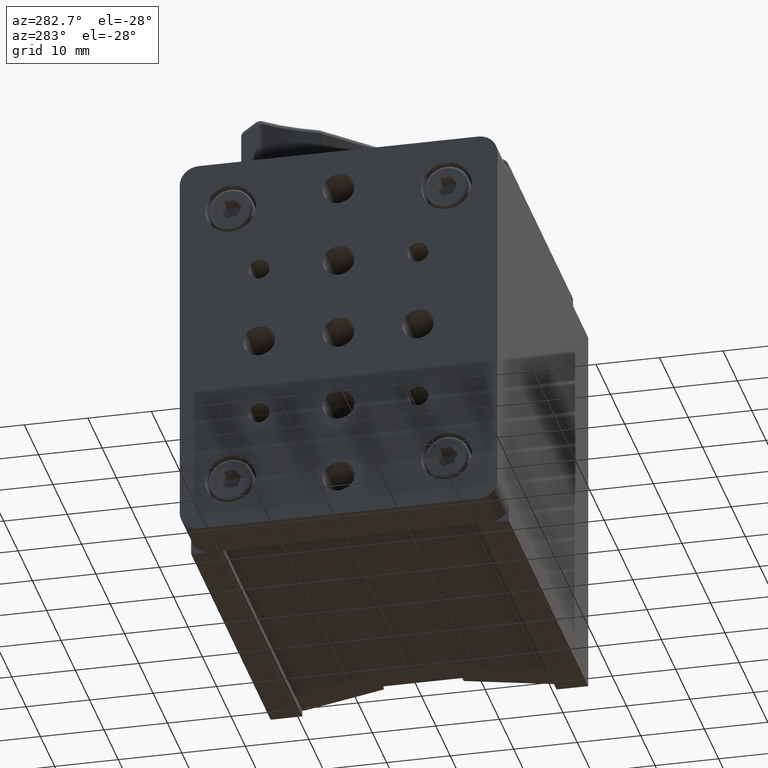
[diagram: clean part render]
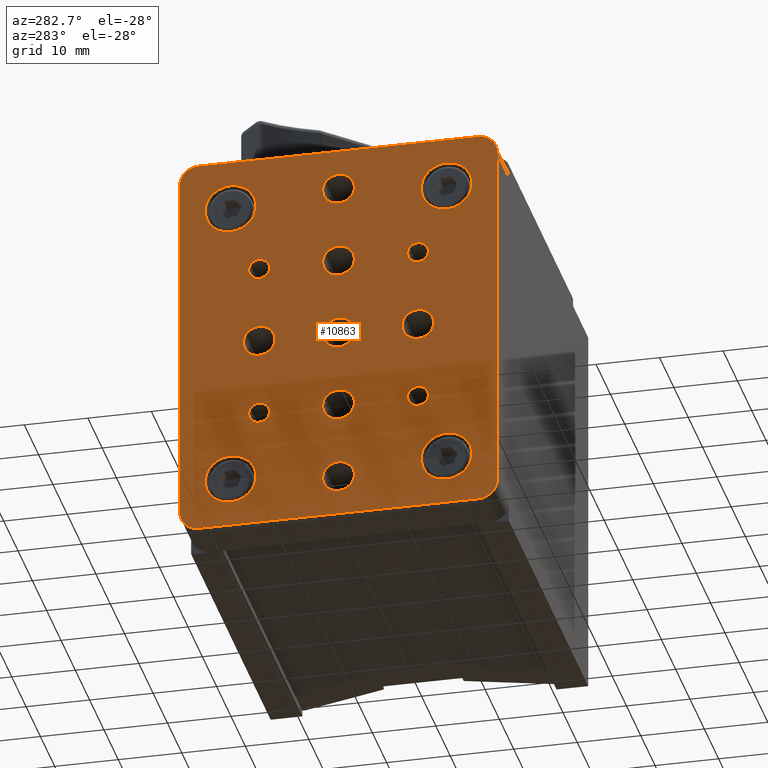
[diagram: same view with one face highlighted and labeled with its STEP entity id]
A machine part, auxiliary view. The second image highlights one B-rep face of the part: STEP entity #10863.
In plain terms, the highlighted planar face has unit normal (-1, 0, 0).
Its self-contained STEP definition (entity closure, byte-faithful):
#8 = CARTESIAN_POINT ( 'NONE',  ( -8.000000000000000000, 0.0000000000000000000, -12.50000000000000000 ) ) ;
#89 = EDGE_LOOP ( 'NONE', ( #12372, #2196 ) ) ;
#199 = DIRECTION ( 'NONE',  ( 0.0000000000000000000, 0.0000000000000000000, 1.000000000000000000 ) ) ;
#210 = DIRECTION ( 'NONE',  ( 0.0000000000000000000, 0.0000000000000000000, 1.000000000000000000 ) ) ;
#228 = EDGE_CURVE ( 'NONE', #4768, #12541, #1212, .T. ) ;
#234 = VERTEX_POINT ( 'NONE', #10972 ) ;
#253 = CIRCLE ( 'NONE', #7229, 2.499999999999998700 ) ;
#339 = EDGE_CURVE ( 'NONE', #9817, #4795, #11154, .T. ) ;
#350 = CARTESIAN_POINT ( 'NONE',  ( -8.000000000000000000, 0.0000000000000000000, 0.0000000000000000000 ) ) ;
#400 = ORIENTED_EDGE ( 'NONE', *, *, #9247, .F. ) ;
#402 = ORIENTED_EDGE ( 'NONE', *, *, #1150, .F. ) ;
#461 = DIRECTION ( 'NONE',  ( 0.0000000000000000000, 0.0000000000000000000, 1.000000000000000000 ) ) ;
#478 = CARTESIAN_POINT ( 'NONE',  ( -8.000000000000000000, 0.0000000000000000000, 12.50000000000000000 ) ) ;
#484 = CARTESIAN_POINT ( 'NONE',  ( -8.000000000000000000, 12.50000000000000000, 2.499999999999998700 ) ) ;
#533 = DIRECTION ( 'NONE',  ( -1.000000000000000000, 0.0000000000000000000, 0.0000000000000000000 ) ) ;
#683 = CIRCLE ( 'NONE', #6838, 2.499999999999998700 ) ;
#692 = DIRECTION ( 'NONE',  ( -1.000000000000000000, 0.0000000000000000000, 0.0000000000000000000 ) ) ;
#753 = VERTEX_POINT ( 'NONE', #5167 ) ;
#789 = EDGE_LOOP ( 'NONE', ( #400, #8560 ) ) ;
#797 = EDGE_CURVE ( 'NONE', #6297, #12050, #1356, .T. ) ;
#841 = CARTESIAN_POINT ( 'NONE',  ( -8.000000000000000000, 0.0000000000000000000, 2.499999999999998700 ) ) ;
#875 = CARTESIAN_POINT ( 'NONE',  ( -8.000000000000000000, -25.00000000000000000, 28.50000000000000400 ) ) ;
#932 = AXIS2_PLACEMENT_3D ( 'NONE', #3110, #10871, #6063 ) ;
#956 = DIRECTION ( 'NONE',  ( 0.0000000000000000000, 0.0000000000000000000, 1.000000000000000000 ) ) ;
#998 = DIRECTION ( 'NONE',  ( 0.0000000000000000000, 0.0000000000000000000, 1.000000000000000000 ) ) ;
#1001 = ORIENTED_EDGE ( 'NONE', *, *, #3891, .T. ) ;
#1006 = FACE_OUTER_BOUND ( 'NONE', #3777, .T. ) ;
#1083 = DIRECTION ( 'NONE',  ( -1.000000000000000000, 0.0000000000000000000, 0.0000000000000000000 ) ) ;
#1150 = EDGE_CURVE ( 'NONE', #3204, #1720, #11593, .T. ) ;
#1154 = DIRECTION ( 'NONE',  ( -1.000000000000000000, 0.0000000000000000000, 0.0000000000000000000 ) ) ;
#1157 = FACE_BOUND ( 'NONE', #1623, .T. ) ;
#1201 = CARTESIAN_POINT ( 'NONE',  ( -8.000000000000000000, 0.0000000000000000000, 15.00000000000000000 ) ) ;
#1212 = CIRCLE ( 'NONE', #3647, 1.649999999999998600 ) ;
#1237 = ORIENTED_EDGE ( 'NONE', *, *, #12192, .F. ) ;
#1282 = DIRECTION ( 'NONE',  ( 0.0000000000000000000, 0.0000000000000000000, 1.000000000000000000 ) ) ;
#1308 = ORIENTED_EDGE ( 'NONE', *, *, #228, .F. ) ;
#1311 = FACE_BOUND ( 'NONE', #12102, .T. ) ;
#1328 = AXIS2_PLACEMENT_3D ( 'NONE', #9312, #11176, #6325 ) ;
#1347 = DIRECTION ( 'NONE',  ( 0.0000000000000000000, 0.0000000000000000000, -1.000000000000000000 ) ) ;
#1356 = CIRCLE ( 'NONE', #2455, 2.999999999999999100 ) ;
#1415 = CARTESIAN_POINT ( 'NONE',  ( -8.000000000000000000, 12.50000000000000000, 14.14999999999999900 ) ) ;
#1531 = EDGE_CURVE ( 'NONE', #3597, #6297, #5026, .T. ) ;
#1555 = ORIENTED_EDGE ( 'NONE', *, *, #4991, .T. ) ;
#1623 = EDGE_LOOP ( 'NONE', ( #6335, #6506 ) ) ;
#1720 = VERTEX_POINT ( 'NONE', #11964 ) ;
#1723 = DIRECTION ( 'NONE',  ( 0.0000000000000000000, 0.0000000000000000000, 1.000000000000000000 ) ) ;
#1752 = CIRCLE ( 'NONE', #1830, 3.999999999999993300 ) ;
#1771 = FACE_BOUND ( 'NONE', #7662, .T. ) ;
#1787 = CARTESIAN_POINT ( 'NONE',  ( -8.000000000000000000, -12.50000000000000000, 2.499999999999998700 ) ) ;
#1809 = CARTESIAN_POINT ( 'NONE',  ( -8.000000000000000000, 17.00000000000000000, 23.50000000000000000 ) ) ;
#1830 = AXIS2_PLACEMENT_3D ( 'NONE', #11372, #6426, #10308 ) ;
#1836 = CARTESIAN_POINT ( 'NONE',  ( -8.000000000000000000, -12.50000000000000000, 0.0000000000000000000 ) ) ;
#1880 = CARTESIAN_POINT ( 'NONE',  ( -8.000000000000000000, 12.50000000000000000, -12.50000000000000000 ) ) ;
#1936 = CIRCLE ( 'NONE', #4473, 2.499999999999998700 ) ;
#1987 = DIRECTION ( 'NONE',  ( 0.0000000000000000000, 0.0000000000000000000, 1.000000000000000000 ) ) ;
#2049 = VERTEX_POINT ( 'NONE', #9909 ) ;
#2074 = EDGE_LOOP ( 'NONE', ( #5622, #6658 ) ) ;
#2076 = EDGE_CURVE ( 'NONE', #2049, #6016, #10369, .T. ) ;
#2183 = DIRECTION ( 'NONE',  ( 0.0000000000000000000, 0.0000000000000000000, 1.000000000000000000 ) ) ;
#2196 = ORIENTED_EDGE ( 'NONE', *, *, #3035, .F. ) ;
#2273 = CARTESIAN_POINT ( 'NONE',  ( -8.000000000000000000, 22.00000000000000400, 31.50000000000000700 ) ) ;
#2348 = VERTEX_POINT ( 'NONE', #12265 ) ;
#2455 = AXIS2_PLACEMENT_3D ( 'NONE', #12220, #533, #11506 ) ;
#2504 = EDGE_LOOP ( 'NONE', ( #9041, #11951 ) ) ;
#2532 = ORIENTED_EDGE ( 'NONE', *, *, #8050, .F. ) ;
#2541 = AXIS2_PLACEMENT_3D ( 'NONE', #11042, #10063, #2183 ) ;
#2549 = EDGE_CURVE ( 'NONE', #753, #3606, #8664, .T. ) ;
#2629 = CARTESIAN_POINT ( 'NONE',  ( -8.000000000000000000, 25.00000000000000000, -28.50000000000000700 ) ) ;
#2644 = EDGE_CURVE ( 'NONE', #12541, #4768, #5939, .T. ) ;
#2667 = DIRECTION ( 'NONE',  ( 0.0000000000000000000, 0.0000000000000000000, 1.000000000000000000 ) ) ;
#2727 = EDGE_CURVE ( 'NONE', #12274, #6460, #9126, .T. ) ;
#2787 = CARTESIAN_POINT ( 'NONE',  ( -8.000000000000000000, -22.00000000000000000, -31.50000000000000700 ) ) ;
#2841 = VERTEX_POINT ( 'NONE', #4540 ) ;
#2856 = DIRECTION ( 'NONE',  ( 0.0000000000000000000, 0.0000000000000000000, 1.000000000000000000 ) ) ;
#2865 = FACE_BOUND ( 'NONE', #4924, .T. ) ;
#2907 = EDGE_LOOP ( 'NONE', ( #7754, #10033 ) ) ;
#2920 = CARTESIAN_POINT ( 'NONE',  ( -8.000000000000000000, -12.50000000000000000, -12.50000000000000000 ) ) ;
#2950 = VERTEX_POINT ( 'NONE', #1787 ) ;
#2966 = CIRCLE ( 'NONE', #6504, 2.499999999999998700 ) ;
#2975 = DIRECTION ( 'NONE',  ( 0.0000000000000000000, 0.0000000000000000000, 1.000000000000000000 ) ) ;
#2997 = CIRCLE ( 'NONE', #8630, 1.649999999999998600 ) ;
#3035 = EDGE_CURVE ( 'NONE', #9819, #11177, #1936, .T. ) ;
#3110 = CARTESIAN_POINT ( 'NONE',  ( -8.000000000000000000, -12.50000000000000000, 12.50000000000000000 ) ) ;
#3128 = EDGE_CURVE ( 'NONE', #5265, #2348, #5448, .T. ) ;
#3133 = ORIENTED_EDGE ( 'NONE', *, *, #10197, .F. ) ;
#3153 = CARTESIAN_POINT ( 'NONE',  ( -8.000000000000000000, -25.00000000000000000, -31.50000000000000700 ) ) ;
#3156 = CIRCLE ( 'NONE', #10091, 3.000000000000002700 ) ;
#3204 = VERTEX_POINT ( 'NONE', #3739 ) ;
#3247 = EDGE_CURVE ( 'NONE', #3606, #7368, #4219, .T. ) ;
#3313 = FACE_BOUND ( 'NONE', #5417, .T. ) ;
#3343 = CARTESIAN_POINT ( 'NONE',  ( -8.000000000000000000, 12.50000000000000000, 0.0000000000000000000 ) ) ;
#3384 = DIRECTION ( 'NONE',  ( -1.000000000000000000, 0.0000000000000000000, 0.0000000000000000000 ) ) ;
#3459 = CARTESIAN_POINT ( 'NONE',  ( -8.000000000000000000, 0.0000000000000000000, -10.00000000000000200 ) ) ;
#3497 = DIRECTION ( 'NONE',  ( -1.000000000000000000, 0.0000000000000000000, 0.0000000000000000000 ) ) ;
#3504 = CIRCLE ( 'NONE', #7616, 2.499999999999998700 ) ;
#3588 = CIRCLE ( 'NONE', #8742, 3.999999999999993300 ) ;
#3590 = EDGE_CURVE ( 'NONE', #4795, #9817, #683, .T. ) ;
#3597 = VERTEX_POINT ( 'NONE', #9492 ) ;
#3606 = VERTEX_POINT ( 'NONE', #875 ) ;
#3614 = CARTESIAN_POINT ( 'NONE',  ( -8.000000000000000000, 22.00000000000000400, -31.50000000000000700 ) ) ;
#3622 = FACE_BOUND ( 'NONE', #10423, .T. ) ;
#3647 = AXIS2_PLACEMENT_3D ( 'NONE', #4105, #8005, #210 ) ;
#3665 = CARTESIAN_POINT ( 'NONE',  ( -8.000000000000000000, 17.00000000000000000, 19.50000000000000700 ) ) ;
#3673 = DIRECTION ( 'NONE',  ( 0.0000000000000000000, 0.0000000000000000000, 1.000000000000000000 ) ) ;
#3739 = CARTESIAN_POINT ( 'NONE',  ( -8.000000000000000000, -17.00000000000000000, 27.49999999999999300 ) ) ;
#3777 = EDGE_LOOP ( 'NONE', ( #1555, #11710, #4445, #7255, #9081, #1001, #4168, #8403 ) ) ;
#3779 = AXIS2_PLACEMENT_3D ( 'NONE', #7882, #3906, #2975 ) ;
#3829 = CARTESIAN_POINT ( 'NONE',  ( -8.000000000000000000, -22.00000000000000000, 31.50000000000000700 ) ) ;
#3864 = DIRECTION ( 'NONE',  ( -1.000000000000000000, 0.0000000000000000000, 0.0000000000000000000 ) ) ;
#3890 = CARTESIAN_POINT ( 'NONE',  ( -8.000000000000000000, -22.00000000000000400, -28.50000000000000700 ) ) ;
#3891 = EDGE_CURVE ( 'NONE', #7144, #3597, #3156, .T. ) ;
#3892 = DIRECTION ( 'NONE',  ( 0.0000000000000000000, 0.0000000000000000000, 1.000000000000000000 ) ) ;
#3906 = DIRECTION ( 'NONE',  ( -1.000000000000000000, 0.0000000000000000000, 0.0000000000000000000 ) ) ;
#3953 = DIRECTION ( 'NONE',  ( 0.0000000000000000000, 0.0000000000000000000, 1.000000000000000000 ) ) ;
#4025 = ORIENTED_EDGE ( 'NONE', *, *, #9546, .F. ) ;
#4043 = DIRECTION ( 'NONE',  ( 0.0000000000000000000, 0.0000000000000000000, 1.000000000000000000 ) ) ;
#4059 = EDGE_CURVE ( 'NONE', #10711, #234, #1752, .T. ) ;
#4069 = AXIS2_PLACEMENT_3D ( 'NONE', #8061, #10909, #11887 ) ;
#4105 = CARTESIAN_POINT ( 'NONE',  ( -8.000000000000000000, -12.50000000000000000, 12.50000000000000000 ) ) ;
#4155 = CARTESIAN_POINT ( 'NONE',  ( -8.000000000000000000, 0.0000000000000000000, 12.50000000000000000 ) ) ;
#4168 = ORIENTED_EDGE ( 'NONE', *, *, #1531, .T. ) ;
#4179 = VERTEX_POINT ( 'NONE', #6120 ) ;
#4180 = ORIENTED_EDGE ( 'NONE', *, *, #2727, .F. ) ;
#4197 = DIRECTION ( 'NONE',  ( 0.0000000000000000000, 0.0000000000000000000, 1.000000000000000000 ) ) ;
#4219 = CIRCLE ( 'NONE', #6447, 2.999999999999999100 ) ;
#4357 = EDGE_CURVE ( 'NONE', #2841, #7676, #2997, .T. ) ;
#4378 = DIRECTION ( 'NONE',  ( -1.000000000000000000, 0.0000000000000000000, 0.0000000000000000000 ) ) ;
#4445 = ORIENTED_EDGE ( 'NONE', *, *, #2549, .T. ) ;
#4473 = AXIS2_PLACEMENT_3D ( 'NONE', #8880, #11776, #5031 ) ;
#4540 = CARTESIAN_POINT ( 'NONE',  ( -8.000000000000000000, 12.50000000000000000, -10.85000000000000100 ) ) ;
#4572 = CIRCLE ( 'NONE', #3779, 3.999999999999993300 ) ;
#4627 = CARTESIAN_POINT ( 'NONE',  ( -8.000000000000000000, 22.00000000000000400, 28.50000000000000400 ) ) ;
#4768 = VERTEX_POINT ( 'NONE', #6183 ) ;
#4795 = VERTEX_POINT ( 'NONE', #6316 ) ;
#4867 = DIRECTION ( 'NONE',  ( -1.000000000000000000, 0.0000000000000000000, 0.0000000000000000000 ) ) ;
#4877 = AXIS2_PLACEMENT_3D ( 'NONE', #6245, #6290, #461 ) ;
#4890 = CARTESIAN_POINT ( 'NONE',  ( -8.000000000000000000, 0.0000000000000000000, 25.00000000000000000 ) ) ;
#4924 = EDGE_LOOP ( 'NONE', ( #5887, #9265 ) ) ;
#4981 = DIRECTION ( 'NONE',  ( -1.000000000000000000, 0.0000000000000000000, 0.0000000000000000000 ) ) ;
#4991 = EDGE_CURVE ( 'NONE', #12050, #11673, #12262, .T. ) ;
#5003 = VECTOR ( 'NONE', #998, 1000.000000000000000 ) ;
#5026 = LINE ( 'NONE', #5216, #7940 ) ;
#5031 = DIRECTION ( 'NONE',  ( 0.0000000000000000000, 0.0000000000000000000, 1.000000000000000000 ) ) ;
#5050 = CIRCLE ( 'NONE', #8511, 1.649999999999998600 ) ;
#5051 = CARTESIAN_POINT ( 'NONE',  ( -8.000000000000000000, 0.0000000000000000000, -22.50000000000000700 ) ) ;
#5052 = CARTESIAN_POINT ( 'NONE',  ( -8.000000000000000000, 17.00000000000000000, -23.50000000000000000 ) ) ;
#5071 = ORIENTED_EDGE ( 'NONE', *, *, #3128, .F. ) ;
#5156 = ORIENTED_EDGE ( 'NONE', *, *, #8821, .F. ) ;
#5158 = CIRCLE ( 'NONE', #9188, 2.499999999999998700 ) ;
#5167 = CARTESIAN_POINT ( 'NONE',  ( -8.000000000000000000, -25.00000000000000000, -28.50000000000000700 ) ) ;
#5216 = CARTESIAN_POINT ( 'NONE',  ( -8.000000000000000000, 25.00000000000000000, -31.50000000000000700 ) ) ;
#5240 = DIRECTION ( 'NONE',  ( 0.0000000000000000000, 0.0000000000000000000, 1.000000000000000000 ) ) ;
#5265 = VERTEX_POINT ( 'NONE', #11286 ) ;
#5302 = FACE_BOUND ( 'NONE', #2074, .T. ) ;
#5314 = EDGE_CURVE ( 'NONE', #7368, #7144, #12408, .T. ) ;
#5321 = DIRECTION ( 'NONE',  ( -1.000000000000000000, 0.0000000000000000000, 0.0000000000000000000 ) ) ;
#5359 = DIRECTION ( 'NONE',  ( -1.000000000000000000, 0.0000000000000000000, 0.0000000000000000000 ) ) ;
#5403 = CARTESIAN_POINT ( 'NONE',  ( -8.000000000000000000, -12.50000000000000000, -12.50000000000000000 ) ) ;
#5417 = EDGE_LOOP ( 'NONE', ( #2532, #11474 ) ) ;
#5426 = VERTEX_POINT ( 'NONE', #8771 ) ;
#5443 = FACE_BOUND ( 'NONE', #2907, .T. ) ;
#5448 = CIRCLE ( 'NONE', #2541, 3.999999999999993300 ) ;
#5513 = ORIENTED_EDGE ( 'NONE', *, *, #7976, .F. ) ;
#5526 = EDGE_CURVE ( 'NONE', #12447, #10593, #2966, .T. ) ;
#5622 = ORIENTED_EDGE ( 'NONE', *, *, #339, .F. ) ;
#5638 = CARTESIAN_POINT ( 'NONE',  ( -8.000000000000000000, -17.00000000000000000, -19.50000000000000700 ) ) ;
#5714 = EDGE_CURVE ( 'NONE', #10593, #12447, #10291, .T. ) ;
#5775 = DIRECTION ( 'NONE',  ( -1.000000000000000000, 0.0000000000000000000, 0.0000000000000000000 ) ) ;
#5822 = CIRCLE ( 'NONE', #8443, 2.499999999999998700 ) ;
#5849 = DIRECTION ( 'NONE',  ( -1.000000000000000000, 0.0000000000000000000, 0.0000000000000000000 ) ) ;
#5865 = DIRECTION ( 'NONE',  ( 0.0000000000000000000, 0.0000000000000000000, 1.000000000000000000 ) ) ;
#5887 = ORIENTED_EDGE ( 'NONE', *, *, #4357, .F. ) ;
#5898 = DIRECTION ( 'NONE',  ( 0.0000000000000000000, 0.0000000000000000000, 1.000000000000000000 ) ) ;
#5939 = CIRCLE ( 'NONE', #932, 1.649999999999998600 ) ;
#5970 = AXIS2_PLACEMENT_3D ( 'NONE', #7923, #1154, #1987 ) ;
#6016 = VERTEX_POINT ( 'NONE', #6846 ) ;
#6029 = ORIENTED_EDGE ( 'NONE', *, *, #2644, .F. ) ;
#6052 = EDGE_CURVE ( 'NONE', #11673, #753, #9050, .T. ) ;
#6063 = DIRECTION ( 'NONE',  ( 0.0000000000000000000, 0.0000000000000000000, 1.000000000000000000 ) ) ;
#6078 = DIRECTION ( 'NONE',  ( -1.000000000000000000, 0.0000000000000000000, 0.0000000000000000000 ) ) ;
#6120 = CARTESIAN_POINT ( 'NONE',  ( -8.000000000000000000, -12.50000000000000000, -14.14999999999999900 ) ) ;
#6125 = CIRCLE ( 'NONE', #6232, 3.999999999999993300 ) ;
#6183 = CARTESIAN_POINT ( 'NONE',  ( -8.000000000000000000, -12.50000000000000000, 14.14999999999999900 ) ) ;
#6197 = AXIS2_PLACEMENT_3D ( 'NONE', #478, #4378, #5240 ) ;
#6220 = FACE_BOUND ( 'NONE', #89, .T. ) ;
#6232 = AXIS2_PLACEMENT_3D ( 'NONE', #1809, #9629, #10737 ) ;
#6245 = CARTESIAN_POINT ( 'NONE',  ( -8.000000000000000000, 0.0000000000000000000, -25.00000000000000400 ) ) ;
#6288 = CARTESIAN_POINT ( 'NONE',  ( -8.000000000000000000, 3.061616997868380700E-016, 10.00000000000000200 ) ) ;
#6290 = DIRECTION ( 'NONE',  ( -1.000000000000000000, 0.0000000000000000000, 0.0000000000000000000 ) ) ;
#6297 = VERTEX_POINT ( 'NONE', #2629 ) ;
#6316 = CARTESIAN_POINT ( 'NONE',  ( -8.000000000000000000, 3.061616997868379200E-016, -27.50000000000000400 ) ) ;
#6325 = DIRECTION ( 'NONE',  ( 0.0000000000000000000, 0.0000000000000000000, 1.000000000000000000 ) ) ;
#6335 = ORIENTED_EDGE ( 'NONE', *, *, #9481, .F. ) ;
#6426 = DIRECTION ( 'NONE',  ( -1.000000000000000000, 0.0000000000000000000, 0.0000000000000000000 ) ) ;
#6447 = AXIS2_PLACEMENT_3D ( 'NONE', #6703, #10617, #7709 ) ;
#6460 = VERTEX_POINT ( 'NONE', #6288 ) ;
#6504 = AXIS2_PLACEMENT_3D ( 'NONE', #8372, #3497, #2667 ) ;
#6506 = ORIENTED_EDGE ( 'NONE', *, *, #10942, .F. ) ;
#6571 = CIRCLE ( 'NONE', #9662, 2.499999999999998700 ) ;
#6604 = CARTESIAN_POINT ( 'NONE',  ( -8.000000000000000000, -17.00000000000000000, 23.50000000000000000 ) ) ;
#6651 = CARTESIAN_POINT ( 'NONE',  ( -8.000000000000000000, 25.00000000000000000, 31.50000000000000700 ) ) ;
#6658 = ORIENTED_EDGE ( 'NONE', *, *, #3590, .F. ) ;
#6682 = FACE_BOUND ( 'NONE', #8280, .T. ) ;
#6703 = CARTESIAN_POINT ( 'NONE',  ( -8.000000000000000000, -22.00000000000000000, 28.50000000000000700 ) ) ;
#6775 = CARTESIAN_POINT ( 'NONE',  ( -8.000000000000000000, 3.061616997868382200E-016, -2.499999999999999100 ) ) ;
#6781 = DIRECTION ( 'NONE',  ( -1.000000000000000000, 0.0000000000000000000, 0.0000000000000000000 ) ) ;
#6793 = AXIS2_PLACEMENT_3D ( 'NONE', #5403, #5359, #12174 ) ;
#6797 = AXIS2_PLACEMENT_3D ( 'NONE', #2920, #9733, #956 ) ;
#6838 = AXIS2_PLACEMENT_3D ( 'NONE', #12490, #10683, #10767 ) ;
#6846 = CARTESIAN_POINT ( 'NONE',  ( -8.000000000000000000, 0.0000000000000000000, 27.50000000000000000 ) ) ;
#7068 = VERTEX_POINT ( 'NONE', #11083 ) ;
#7102 = AXIS2_PLACEMENT_3D ( 'NONE', #1880, #4867, #9779 ) ;
#7144 = VERTEX_POINT ( 'NONE', #2273 ) ;
#7170 = CIRCLE ( 'NONE', #7881, 3.999999999999993300 ) ;
#7188 = EDGE_LOOP ( 'NONE', ( #402, #4025 ) ) ;
#7211 = CARTESIAN_POINT ( 'NONE',  ( -8.000000000000000000, -12.50000000000000000, -10.85000000000000100 ) ) ;
#7229 = AXIS2_PLACEMENT_3D ( 'NONE', #1836, #7781, #5865 ) ;
#7230 = CARTESIAN_POINT ( 'NONE',  ( -8.000000000000000000, 12.50000000000000000, -14.14999999999999900 ) ) ;
#7231 = ORIENTED_EDGE ( 'NONE', *, *, #11924, .F. ) ;
#7255 = ORIENTED_EDGE ( 'NONE', *, *, #3247, .T. ) ;
#7271 = CIRCLE ( 'NONE', #6793, 1.649999999999998600 ) ;
#7296 = FACE_BOUND ( 'NONE', #11219, .T. ) ;
#7368 = VERTEX_POINT ( 'NONE', #3829 ) ;
#7616 = AXIS2_PLACEMENT_3D ( 'NONE', #350, #5321, #11247 ) ;
#7662 = EDGE_LOOP ( 'NONE', ( #1237, #5071 ) ) ;
#7676 = VERTEX_POINT ( 'NONE', #7230 ) ;
#7709 = DIRECTION ( 'NONE',  ( 0.0000000000000000000, 0.0000000000000000000, 1.000000000000000000 ) ) ;
#7754 = ORIENTED_EDGE ( 'NONE', *, *, #5714, .F. ) ;
#7763 = DIRECTION ( 'NONE',  ( -1.000000000000000000, 0.0000000000000000000, 0.0000000000000000000 ) ) ;
#7781 = DIRECTION ( 'NONE',  ( -1.000000000000000000, 0.0000000000000000000, 0.0000000000000000000 ) ) ;
#7804 = DIRECTION ( 'NONE',  ( 0.0000000000000000000, -1.000000000000000000, 0.0000000000000000000 ) ) ;
#7842 = CARTESIAN_POINT ( 'NONE',  ( -8.000000000000000000, 12.50000000000000000, 12.50000000000000000 ) ) ;
#7855 = EDGE_CURVE ( 'NONE', #11939, #7068, #5050, .T. ) ;
#7881 = AXIS2_PLACEMENT_3D ( 'NONE', #6604, #3864, #2856 ) ;
#7882 = CARTESIAN_POINT ( 'NONE',  ( -8.000000000000000000, -17.00000000000000000, -23.50000000000000000 ) ) ;
#7923 = CARTESIAN_POINT ( 'NONE',  ( -8.000000000000000000, -17.00000000000000000, 23.50000000000000000 ) ) ;
#7940 = VECTOR ( 'NONE', #1347, 1000.000000000000000 ) ;
#7976 = EDGE_CURVE ( 'NONE', #6460, #12274, #5822, .T. ) ;
#8005 = DIRECTION ( 'NONE',  ( -1.000000000000000000, 0.0000000000000000000, 0.0000000000000000000 ) ) ;
#8050 = EDGE_CURVE ( 'NONE', #234, #10711, #6125, .T. ) ;
#8061 = CARTESIAN_POINT ( 'NONE',  ( -8.000000000000000000, 0.0000000000000000000, 0.0000000000000000000 ) ) ;
#8083 = DIRECTION ( 'NONE',  ( -1.000000000000000000, 0.0000000000000000000, 0.0000000000000000000 ) ) ;
#8127 = ORIENTED_EDGE ( 'NONE', *, *, #8392, .F. ) ;
#8160 = VECTOR ( 'NONE', #9623, 1000.000000000000000 ) ;
#8179 = ORIENTED_EDGE ( 'NONE', *, *, #10222, .F. ) ;
#8280 = EDGE_LOOP ( 'NONE', ( #1308, #6029 ) ) ;
#8372 = CARTESIAN_POINT ( 'NONE',  ( -8.000000000000000000, 0.0000000000000000000, -12.50000000000000000 ) ) ;
#8392 = EDGE_CURVE ( 'NONE', #11059, #4179, #9013, .T. ) ;
#8398 = CIRCLE ( 'NONE', #10968, 1.649999999999998600 ) ;
#8403 = ORIENTED_EDGE ( 'NONE', *, *, #797, .T. ) ;
#8443 = AXIS2_PLACEMENT_3D ( 'NONE', #4155, #8083, #4197 ) ;
#8462 = AXIS2_PLACEMENT_3D ( 'NONE', #3890, #10963, #11051 ) ;
#8511 = AXIS2_PLACEMENT_3D ( 'NONE', #7842, #6781, #9712 ) ;
#8560 = ORIENTED_EDGE ( 'NONE', *, *, #2076, .F. ) ;
#8630 = AXIS2_PLACEMENT_3D ( 'NONE', #12319, #9407, #3673 ) ;
#8655 = CIRCLE ( 'NONE', #4069, 2.499999999999998700 ) ;
#8664 = LINE ( 'NONE', #12601, #5003 ) ;
#8699 = VERTEX_POINT ( 'NONE', #6775 ) ;
#8700 = CARTESIAN_POINT ( 'NONE',  ( -8.000000000000000000, 25.00000000000000000, -31.50000000000000700 ) ) ;
#8742 = AXIS2_PLACEMENT_3D ( 'NONE', #5052, #9925, #1282 ) ;
#8771 = CARTESIAN_POINT ( 'NONE',  ( -8.000000000000000000, -17.00000000000000000, -27.49999999999999300 ) ) ;
#8821 = EDGE_CURVE ( 'NONE', #5426, #11722, #4572, .T. ) ;
#8880 = CARTESIAN_POINT ( 'NONE',  ( -8.000000000000000000, 12.50000000000000000, 0.0000000000000000000 ) ) ;
#8912 = CARTESIAN_POINT ( 'NONE',  ( -8.000000000000000000, 12.50000000000000000, 12.50000000000000000 ) ) ;
#9013 = CIRCLE ( 'NONE', #6797, 1.649999999999998600 ) ;
#9015 = EDGE_CURVE ( 'NONE', #11177, #9819, #6571, .T. ) ;
#9041 = ORIENTED_EDGE ( 'NONE', *, *, #7855, .F. ) ;
#9050 = CIRCLE ( 'NONE', #8462, 2.999999999999999100 ) ;
#9081 = ORIENTED_EDGE ( 'NONE', *, *, #5314, .T. ) ;
#9106 = AXIS2_PLACEMENT_3D ( 'NONE', #8, #4981, #3953 ) ;
#9126 = CIRCLE ( 'NONE', #6197, 2.499999999999998700 ) ;
#9156 = CARTESIAN_POINT ( 'NONE',  ( -8.000000000000000000, 12.50000000000000000, -2.499999999999999100 ) ) ;
#9188 = AXIS2_PLACEMENT_3D ( 'NONE', #11652, #5775, #3892 ) ;
#9247 = EDGE_CURVE ( 'NONE', #6016, #2049, #12333, .T. ) ;
#9265 = ORIENTED_EDGE ( 'NONE', *, *, #11237, .F. ) ;
#9291 = EDGE_CURVE ( 'NONE', #7068, #11939, #8398, .T. ) ;
#9312 = CARTESIAN_POINT ( 'NONE',  ( -8.000000000000000000, -17.00000000000000000, -23.50000000000000000 ) ) ;
#9375 = CARTESIAN_POINT ( 'NONE',  ( -8.000000000000000000, 3.061616997868380700E-016, -15.00000000000000000 ) ) ;
#9407 = DIRECTION ( 'NONE',  ( -1.000000000000000000, 0.0000000000000000000, 0.0000000000000000000 ) ) ;
#9481 = EDGE_CURVE ( 'NONE', #12104, #8699, #3504, .T. ) ;
#9492 = CARTESIAN_POINT ( 'NONE',  ( -8.000000000000000000, 25.00000000000000000, 28.50000000000000400 ) ) ;
#9535 = VECTOR ( 'NONE', #7804, 1000.000000000000000 ) ;
#9546 = EDGE_CURVE ( 'NONE', #1720, #3204, #7170, .T. ) ;
#9579 = CARTESIAN_POINT ( 'NONE',  ( -8.000000000000000000, -12.50000000000000000, 10.85000000000000100 ) ) ;
#9596 = EDGE_LOOP ( 'NONE', ( #4180, #5513 ) ) ;
#9623 = DIRECTION ( 'NONE',  ( 0.0000000000000000000, 1.000000000000000000, 0.0000000000000000000 ) ) ;
#9629 = DIRECTION ( 'NONE',  ( -1.000000000000000000, 0.0000000000000000000, 0.0000000000000000000 ) ) ;
#9662 = AXIS2_PLACEMENT_3D ( 'NONE', #3343, #3384, #10254 ) ;
#9712 = DIRECTION ( 'NONE',  ( 0.0000000000000000000, 0.0000000000000000000, 1.000000000000000000 ) ) ;
#9733 = DIRECTION ( 'NONE',  ( -1.000000000000000000, 0.0000000000000000000, 0.0000000000000000000 ) ) ;
#9779 = DIRECTION ( 'NONE',  ( 0.0000000000000000000, 0.0000000000000000000, 1.000000000000000000 ) ) ;
#9817 = VERTEX_POINT ( 'NONE', #5051 ) ;
#9819 = VERTEX_POINT ( 'NONE', #9156 ) ;
#9865 = CARTESIAN_POINT ( 'NONE',  ( -8.000000000000000000, 0.0000000000000000000, 25.00000000000000000 ) ) ;
#9883 = FACE_BOUND ( 'NONE', #2504, .T. ) ;
#9909 = CARTESIAN_POINT ( 'NONE',  ( -8.000000000000000000, 3.061616997868383100E-016, 22.50000000000000400 ) ) ;
#9925 = DIRECTION ( 'NONE',  ( -1.000000000000000000, 0.0000000000000000000, 0.0000000000000000000 ) ) ;
#10033 = ORIENTED_EDGE ( 'NONE', *, *, #5526, .F. ) ;
#10063 = DIRECTION ( 'NONE',  ( -1.000000000000000000, 0.0000000000000000000, 0.0000000000000000000 ) ) ;
#10091 = AXIS2_PLACEMENT_3D ( 'NONE', #4627, #692, #1723 ) ;
#10197 = EDGE_CURVE ( 'NONE', #11639, #2950, #253, .T. ) ;
#10222 = EDGE_CURVE ( 'NONE', #2950, #11639, #5158, .T. ) ;
#10254 = DIRECTION ( 'NONE',  ( 0.0000000000000000000, 0.0000000000000000000, 1.000000000000000000 ) ) ;
#10291 = CIRCLE ( 'NONE', #9106, 2.499999999999998700 ) ;
#10308 = DIRECTION ( 'NONE',  ( 0.0000000000000000000, 0.0000000000000000000, 1.000000000000000000 ) ) ;
#10369 = CIRCLE ( 'NONE', #11975, 2.499999999999998700 ) ;
#10423 = EDGE_LOOP ( 'NONE', ( #11647, #5156 ) ) ;
#10543 = EDGE_CURVE ( 'NONE', #11722, #5426, #11714, .T. ) ;
#10593 = VERTEX_POINT ( 'NONE', #3459 ) ;
#10617 = DIRECTION ( 'NONE',  ( -1.000000000000000000, 0.0000000000000000000, 0.0000000000000000000 ) ) ;
#10683 = DIRECTION ( 'NONE',  ( -1.000000000000000000, 0.0000000000000000000, 0.0000000000000000000 ) ) ;
#10711 = VERTEX_POINT ( 'NONE', #3665 ) ;
#10737 = DIRECTION ( 'NONE',  ( 0.0000000000000000000, 0.0000000000000000000, 1.000000000000000000 ) ) ;
#10767 = DIRECTION ( 'NONE',  ( 0.0000000000000000000, 0.0000000000000000000, 1.000000000000000000 ) ) ;
#10863 = ADVANCED_FACE ( 'NONE', ( #2865, #9883, #1311, #6682, #5302, #5443, #1157, #11548, #11409, #6220, #7296, #1771, #3313, #12152, #3622, #1006 ), #11637, .T. ) ;
#10871 = DIRECTION ( 'NONE',  ( -1.000000000000000000, 0.0000000000000000000, 0.0000000000000000000 ) ) ;
#10872 = DIRECTION ( 'NONE',  ( 0.0000000000000000000, 0.0000000000000000000, 1.000000000000000000 ) ) ;
#10909 = DIRECTION ( 'NONE',  ( -1.000000000000000000, 0.0000000000000000000, 0.0000000000000000000 ) ) ;
#10942 = EDGE_CURVE ( 'NONE', #8699, #12104, #8655, .T. ) ;
#10963 = DIRECTION ( 'NONE',  ( -1.000000000000000000, 0.0000000000000000000, 0.0000000000000000000 ) ) ;
#10968 = AXIS2_PLACEMENT_3D ( 'NONE', #8912, #5849, #4043 ) ;
#10972 = CARTESIAN_POINT ( 'NONE',  ( -8.000000000000000000, 17.00000000000000000, 27.49999999999999300 ) ) ;
#11042 = CARTESIAN_POINT ( 'NONE',  ( -8.000000000000000000, 17.00000000000000000, -23.50000000000000000 ) ) ;
#11051 = DIRECTION ( 'NONE',  ( 0.0000000000000000000, 0.0000000000000000000, 1.000000000000000000 ) ) ;
#11059 = VERTEX_POINT ( 'NONE', #7211 ) ;
#11083 = CARTESIAN_POINT ( 'NONE',  ( -8.000000000000000000, 12.50000000000000000, 10.85000000000000100 ) ) ;
#11154 = CIRCLE ( 'NONE', #4877, 2.499999999999998700 ) ;
#11176 = DIRECTION ( 'NONE',  ( -1.000000000000000000, 0.0000000000000000000, 0.0000000000000000000 ) ) ;
#11177 = VERTEX_POINT ( 'NONE', #484 ) ;
#11219 = EDGE_LOOP ( 'NONE', ( #8179, #3133 ) ) ;
#11237 = EDGE_CURVE ( 'NONE', #7676, #2841, #12597, .T. ) ;
#11247 = DIRECTION ( 'NONE',  ( 0.0000000000000000000, 0.0000000000000000000, 1.000000000000000000 ) ) ;
#11286 = CARTESIAN_POINT ( 'NONE',  ( -8.000000000000000000, 17.00000000000000000, -27.49999999999999300 ) ) ;
#11372 = CARTESIAN_POINT ( 'NONE',  ( -8.000000000000000000, 17.00000000000000000, 23.50000000000000000 ) ) ;
#11409 = FACE_BOUND ( 'NONE', #789, .T. ) ;
#11474 = ORIENTED_EDGE ( 'NONE', *, *, #4059, .F. ) ;
#11506 = DIRECTION ( 'NONE',  ( 0.0000000000000000000, 0.0000000000000000000, 1.000000000000000000 ) ) ;
#11548 = FACE_BOUND ( 'NONE', #9596, .T. ) ;
#11554 = CARTESIAN_POINT ( 'NONE',  ( -8.000000000000000000, -12.50000000000000000, -2.499999999999999100 ) ) ;
#11593 = CIRCLE ( 'NONE', #5970, 3.999999999999993300 ) ;
#11637 = PLANE ( 'NONE',  #11902 ) ;
#11639 = VERTEX_POINT ( 'NONE', #11554 ) ;
#11647 = ORIENTED_EDGE ( 'NONE', *, *, #10543, .F. ) ;
#11652 = CARTESIAN_POINT ( 'NONE',  ( -8.000000000000000000, -12.50000000000000000, 0.0000000000000000000 ) ) ;
#11673 = VERTEX_POINT ( 'NONE', #2787 ) ;
#11710 = ORIENTED_EDGE ( 'NONE', *, *, #6052, .T. ) ;
#11714 = CIRCLE ( 'NONE', #1328, 3.999999999999993300 ) ;
#11722 = VERTEX_POINT ( 'NONE', #5638 ) ;
#11776 = DIRECTION ( 'NONE',  ( -1.000000000000000000, 0.0000000000000000000, 0.0000000000000000000 ) ) ;
#11887 = DIRECTION ( 'NONE',  ( 0.0000000000000000000, 0.0000000000000000000, 1.000000000000000000 ) ) ;
#11902 = AXIS2_PLACEMENT_3D ( 'NONE', #3153, #1083, #10872 ) ;
#11924 = EDGE_CURVE ( 'NONE', #4179, #11059, #7271, .T. ) ;
#11939 = VERTEX_POINT ( 'NONE', #1415 ) ;
#11951 = ORIENTED_EDGE ( 'NONE', *, *, #9291, .F. ) ;
#11964 = CARTESIAN_POINT ( 'NONE',  ( -8.000000000000000000, -17.00000000000000000, 19.50000000000000700 ) ) ;
#11975 = AXIS2_PLACEMENT_3D ( 'NONE', #9865, #6078, #199 ) ;
#12050 = VERTEX_POINT ( 'NONE', #3614 ) ;
#12102 = EDGE_LOOP ( 'NONE', ( #8127, #7231 ) ) ;
#12104 = VERTEX_POINT ( 'NONE', #841 ) ;
#12152 = FACE_BOUND ( 'NONE', #7188, .T. ) ;
#12174 = DIRECTION ( 'NONE',  ( 0.0000000000000000000, 0.0000000000000000000, 1.000000000000000000 ) ) ;
#12192 = EDGE_CURVE ( 'NONE', #2348, #5265, #3588, .T. ) ;
#12220 = CARTESIAN_POINT ( 'NONE',  ( -8.000000000000000000, 22.00000000000000400, -28.50000000000000700 ) ) ;
#12262 = LINE ( 'NONE', #8700, #9535 ) ;
#12265 = CARTESIAN_POINT ( 'NONE',  ( -8.000000000000000000, 17.00000000000000000, -19.50000000000000700 ) ) ;
#12274 = VERTEX_POINT ( 'NONE', #1201 ) ;
#12319 = CARTESIAN_POINT ( 'NONE',  ( -8.000000000000000000, 12.50000000000000000, -12.50000000000000000 ) ) ;
#12333 = CIRCLE ( 'NONE', #12670, 2.499999999999998700 ) ;
#12372 = ORIENTED_EDGE ( 'NONE', *, *, #9015, .F. ) ;
#12408 = LINE ( 'NONE', #6651, #8160 ) ;
#12447 = VERTEX_POINT ( 'NONE', #9375 ) ;
#12490 = CARTESIAN_POINT ( 'NONE',  ( -8.000000000000000000, 0.0000000000000000000, -25.00000000000000400 ) ) ;
#12541 = VERTEX_POINT ( 'NONE', #9579 ) ;
#12597 = CIRCLE ( 'NONE', #7102, 1.649999999999998600 ) ;
#12601 = CARTESIAN_POINT ( 'NONE',  ( -8.000000000000000000, -25.00000000000000000, -31.50000000000000700 ) ) ;
#12670 = AXIS2_PLACEMENT_3D ( 'NONE', #4890, #7763, #5898 ) ;